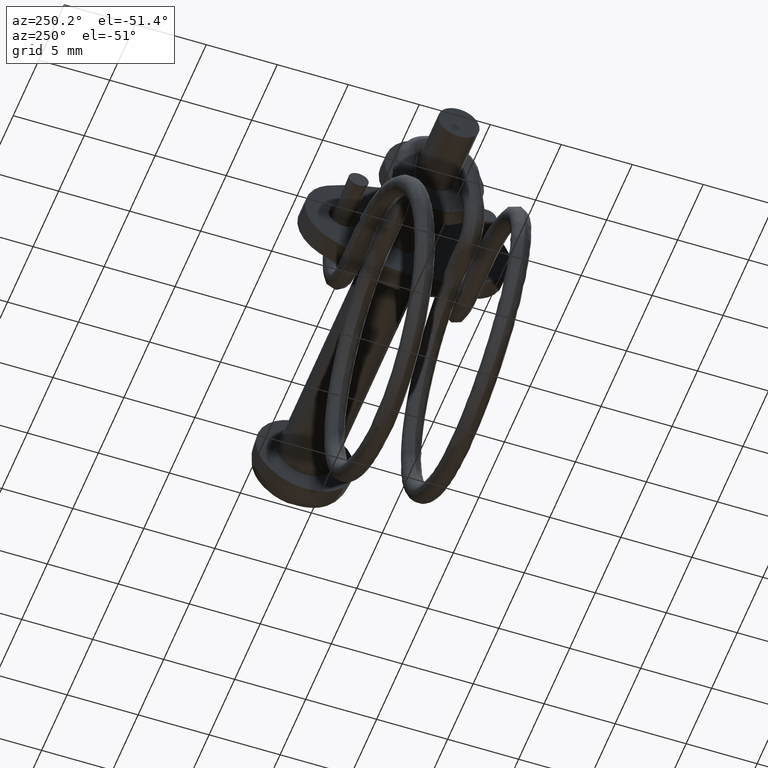
[diagram: clean part render]
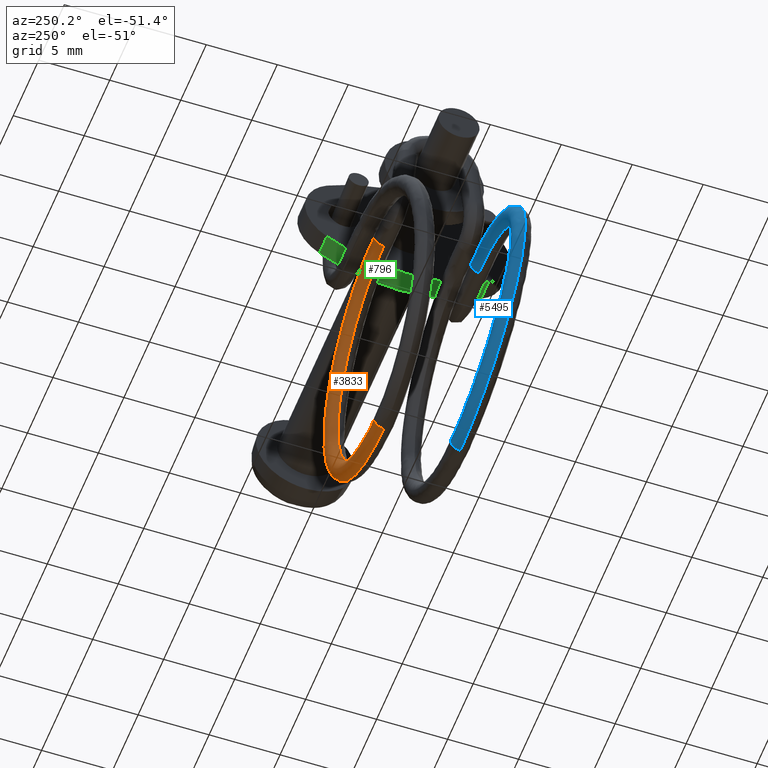
[diagram: same view with three faces highlighted in distinct colors, each labeled with its STEP entity id]
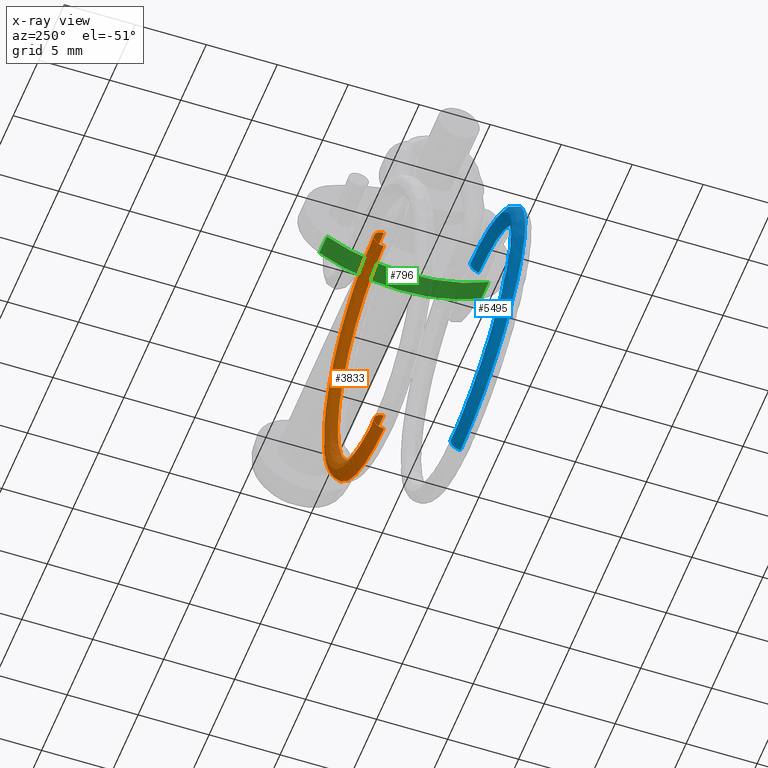
[diagram: x-ray of the same camera — body ghosted, the three highlighted faces saturated]
A machine part, auxiliary view with three faces highlighted in distinct colors.
The next image is the same camera in x-ray (body ghosted, the three faces saturated) — at least one of them is partly hidden behind the body in this view.
Their STEP definitions:

[orange] entity #3833 — the highlighted face is a freeform B-spline surface patch.
#3453=CARTESIAN_POINT('',(-22.799999895931261,2.699999999999000,-25.150000000016480));
#3454=VERTEX_POINT('',#3453);
#3472=CARTESIAN_POINT('',(-22.800000738930741,2.699999999998998,-23.750000000016460));
#3473=VERTEX_POINT('',#3472);
#3676=CARTESIAN_POINT('',(-22.800000738930741,2.699999999998998,-23.750000000016460));
#3677=CARTESIAN_POINT('',(-22.800000738930748,2.883259571458394,-23.750000000016460));
#3678=CARTESIAN_POINT('',(-22.800000693504408,3.065390661133277,-23.825441167489590));
#3679=CARTESIAN_POINT('',(-22.800000537448241,3.324558832525834,-24.084609338882160));
#3680=CARTESIAN_POINT('',(-22.800000427779370,3.399999999998962,-24.266740428557050));
#3681=CARTESIAN_POINT('',(-22.800000207082629,3.399999999998963,-24.633259571475879));
#3682=CARTESIAN_POINT('',(-22.800000097413761,3.324558832525835,-24.815390661150769));
#3683=CARTESIAN_POINT('',(-22.799999941357580,3.065390661133278,-25.074558832543339));
#3684=CARTESIAN_POINT('',(-22.799999895931261,2.883259571458395,-25.150000000016480));
#3685=CARTESIAN_POINT('',(-22.799999895931261,2.699999999999000,-25.150000000016480));
#3686=B_SPLINE_CURVE_WITH_KNOTS('',3,(#3676,#3677,#3678,#3679,#3680,#3681,#3682,#3683,#3684,#3685),.UNSPECIFIED.,.F.,.U.,(4,2,2,2,4),(0.0,0.125000000000000,0.250000000000000,0.375000000000000,0.500000000000000),.UNSPECIFIED.);
#3687=EDGE_CURVE('',#3473,#3454,#3686,.T.);
#3692=CARTESIAN_POINT('',(-24.270736205513064,2.680430283614691,-4.454518708966263));
#3693=CARTESIAN_POINT('',(-12.324382619197532,2.680430283614692,-2.747951114210628));
#3694=CARTESIAN_POINT('',(-12.400205287043322,2.680430283614695,-14.815344697241908));
#3695=CARTESIAN_POINT('',(-12.475124896879171,2.680430283614698,-26.739014025456406));
#3696=CARTESIAN_POINT('',(-24.278002691311720,2.680430283614698,-25.044440637776656));
#3697=CARTESIAN_POINT('',(-24.270736205513064,2.690158157242461,-4.454518708966262));
#3698=CARTESIAN_POINT('',(-12.324382619197532,2.690158157242461,-2.747951114210628));
#3699=CARTESIAN_POINT('',(-12.400205287043326,2.690158157242465,-14.815344697241921));
#3700=CARTESIAN_POINT('',(-12.475124896879173,2.690158157242468,-26.739014025456424));
#3701=CARTESIAN_POINT('',(-24.278002691311720,2.690158157242467,-25.044440637776660));
#3702=CARTESIAN_POINT('',(-24.270736205513074,3.399999999998955,-4.454518708966264));
#3703=CARTESIAN_POINT('',(-12.324382619197531,3.399999999998955,-2.747951114210628));
#3704=CARTESIAN_POINT('',(-12.400205287043326,3.399999999998958,-14.815344697241921));
#3705=CARTESIAN_POINT('',(-12.475124896879173,3.399999999998963,-26.739014025456406));
#3706=CARTESIAN_POINT('',(-24.278002691311727,3.399999999998963,-25.044440637776649));
#3707=CARTESIAN_POINT('',(-24.171744345524314,3.399999999998955,-5.147483795861636));
#3708=CARTESIAN_POINT('',(-13.029472250594093,3.399999999998953,-3.555781327675908));
#3709=CARTESIAN_POINT('',(-13.100191469642590,3.399999999998958,-14.810946496466030));
#3710=CARTESIAN_POINT('',(-13.170068413431798,3.399999999998962,-25.932061158359701));
#3711=CARTESIAN_POINT('',(-24.178521740932670,3.399999999998961,-24.351545594850514));
#3712=CARTESIAN_POINT('',(-24.072752485535567,3.399999999998955,-5.840448882757013));
#3713=CARTESIAN_POINT('',(-13.734561881990656,3.399999999998955,-4.363611541141185));
#3714=CARTESIAN_POINT('',(-13.800177652241841,3.399999999998958,-14.806548295690131));
#3715=CARTESIAN_POINT('',(-13.865011929984417,3.399999999998962,-25.125108291262990));
#3716=CARTESIAN_POINT('',(-24.079040790553627,3.399999999998961,-23.658650551924367));
#3717=CARTESIAN_POINT('',(-24.072752485535556,2.690158157242461,-5.840448882757010));
#3718=CARTESIAN_POINT('',(-13.734561881990658,2.690158157242460,-4.363611541141187));
#3719=CARTESIAN_POINT('',(-13.800177652241837,2.690158157242462,-14.806548295690126));
#3720=CARTESIAN_POINT('',(-13.865011929984421,2.690158157242468,-25.125108291262990));
#3721=CARTESIAN_POINT('',(-24.079040790553631,2.690158157242467,-23.658650551924360));
#3722=CARTESIAN_POINT('',(-24.072752485535545,2.680430283614690,-5.840448882757009));
#3723=CARTESIAN_POINT('',(-13.734561881990658,2.680430283614691,-4.363611541141188));
#3724=CARTESIAN_POINT('',(-13.800177652241846,2.680430283614695,-14.806548295690138));
#3725=CARTESIAN_POINT('',(-13.865011929984421,2.680430283614697,-25.125108291262990));
#3726=CARTESIAN_POINT('',(-24.079040790553631,2.680430283614697,-23.658650551924357));
#3734=(BOUNDED_SURFACE()B_SPLINE_SURFACE(2,2,((#3692,#3697,#3702,#3707,#3712,#3717,#3722),(#3693,#3698,#3703,#3708,#3713,#3718,#3723),(#3694,#3699,#3704,#3709,#3714,#3719,#3724),(#3695,#3700,#3705,#3710,#3715,#3720,#3725),(#3696,#3701,#3706,#3711,#3716,#3721,#3726)),.UNSPECIFIED.,.F.,.F.,.U.)B_SPLINE_SURFACE_WITH_KNOTS((3,2,3),(3,1,2,1,3),(0.0,19.065573801738889,37.982974987996243),(0.0,0.023195959492893,1.182993934137499,2.342791908782105,2.365987868274999),.UNSPECIFIED.)GEOMETRIC_REPRESENTATION_ITEM()RATIONAL_B_SPLINE_SURFACE(((1.002386289529803,0.996582442886105,0.700586264057494,0.990778596242406,0.700586264057494,0.996582442886105,1.002386289529804),(0.657422907247313,0.653616408920697,0.459484994263299,0.649809910594081,0.459484994263299,0.653616408920697,0.657422907247313),(1.011715728752539,1.005857864376269,0.707106781186548,1.0,0.707106781186548,1.005857864376270,1.011715728752539),(0.660176377693819,0.656353936690835,0.461409445538680,0.652531495687851,0.461409445538680,0.656353936690835,0.660176377693819),(0.997066595519499,0.991293550063476,0.696868231806318,0.985520504607453,0.696868231806318,0.991293550063476,0.997066595519499)))REPRESENTATION_ITEM('')SURFACE());
#3735=CARTESIAN_POINT('',(-22.800007992186320,2.699999999998991,-4.349999999989791));
#3736=VERTEX_POINT('',#3735);
#3737=CARTESIAN_POINT('',(-22.800007992186320,2.699999999998991,-4.349999999989791));
#3738=CARTESIAN_POINT('',(-22.374591539921880,2.699999999998993,-4.349994054321519));
#3739=CARTESIAN_POINT('',(-21.353574174094909,2.699999999998982,-4.412697938934061));
#3740=CARTESIAN_POINT('',(-19.870607184026252,2.699999999999006,-4.726616045852189));
#3741=CARTESIAN_POINT('',(-18.436458479282649,2.699999999998972,-5.274828720076889));
#3742=CARTESIAN_POINT('',(-17.201905617733040,2.699999999998998,-5.949383361559765));
#3743=CARTESIAN_POINT('',(-16.135399402971078,2.699999999999036,-6.730272259666065));
#3744=CARTESIAN_POINT('',(-15.067471696866260,2.699999999999012,-7.740755552318969));
#3745=CARTESIAN_POINT('',(-14.220223067527790,2.699999999998934,-8.812751013132704));
#3746=CARTESIAN_POINT('',(-13.605707061313190,2.699999999999085,-9.859867196797117));
#3747=CARTESIAN_POINT('',(-13.177968682985520,2.699999999998909,-10.764239338404050));
#3748=CARTESIAN_POINT('',(-12.761824738960700,2.699999999999024,-11.905019996763571));
#3749=CARTESIAN_POINT('',(-12.492757341632700,2.699999999999069,-13.157084332083620));
#3750=CARTESIAN_POINT('',(-12.380020033742960,2.699999999998774,-14.515206346244961));
#3751=CARTESIAN_POINT('',(-12.413372921994901,2.699999999999067,-15.601985604578511));
#3752=CARTESIAN_POINT('',(-12.596036199846980,2.699999999998965,-16.887810945375850));
#3753=CARTESIAN_POINT('',(-12.931557629973041,2.699999999998998,-18.145179049911349));
#3754=CARTESIAN_POINT('',(-13.553139059348259,2.699999999999069,-19.595239471530370));
#3755=CARTESIAN_POINT('',(-14.318313941922600,2.699999999998818,-20.828570037760031));
#3756=CARTESIAN_POINT('',(-15.083778183210640,2.699999999999061,-21.743906030293939));
#3757=CARTESIAN_POINT('',(-15.836182128482680,2.699999999998964,-22.496313965250788));
#3758=CARTESIAN_POINT('',(-16.805842813325722,2.699999999999027,-23.297161643803499));
#3759=CARTESIAN_POINT('',(-18.087713337711609,2.699999999998974,-24.065463389560868));
#3760=CARTESIAN_POINT('',(-19.467976936153701,2.699999999999038,-24.632200489439711));
#3761=CARTESIAN_POINT('',(-20.991984190875829,2.699999999998914,-25.038899157906361));
#3762=CARTESIAN_POINT('',(-22.119317331814401,2.699999999999061,-25.150093817175581));
#3763=CARTESIAN_POINT('',(-22.799999895931261,2.699999999999000,-25.150000000016480));
#3764=B_SPLINE_CURVE_WITH_KNOTS('',3,(#3737,#3738,#3739,#3740,#3741,#3742,#3743,#3744,#3745,#3746,#3747,#3748,#3749,#3750,#3751,#3752,#3753,#3754,#3755,#3756,#3757,#3758,#3759,#3760,#3761,#3762,#3763),.UNSPECIFIED.,.F.,.U.,(4,1,1,1,1,1,1,1,1,1,1,1,1,1,1,1,1,1,1,1,1,1,1,1,4),(0.000000024018426,1.276253329061102,3.063043498553579,4.530766388287617,5.870858332757209,7.274764767594157,8.487229634717824,10.274019877797270,11.358855517810911,12.124616574461619,13.273272747310211,14.996232556397370,15.953440363166591,17.357309613248962,18.250703975493600,19.846046964578239,21.249956187118752,22.972928550616370,24.185397903907312,24.823534658981689,26.163623646440531,27.950415452316960,29.290497013964991,30.630596534127079,32.672622739382653),.UNSPECIFIED.);
#3765=EDGE_CURVE('',#3736,#3454,#3764,.T.);
#3766=ORIENTED_EDGE('',*,*,#3765,.T.);
#3767=ORIENTED_EDGE('',*,*,#3687,.F.);
#3768=CARTESIAN_POINT('',(-22.800005826610910,2.699999999998991,-5.749999999991088));
#3769=VERTEX_POINT('',#3768);
#3770=CARTESIAN_POINT('',(-22.800005826610910,2.699999999998991,-5.749999999991088));
#3771=CARTESIAN_POINT('',(-22.174133866737211,2.699999999998988,-5.749893574187727));
#3772=CARTESIAN_POINT('',(-21.198574816754139,2.699999999998992,-5.852205116584763));
#3773=CARTESIAN_POINT('',(-19.846823057187208,2.699999999998988,-6.221829268831385));
#3774=CARTESIAN_POINT('',(-18.791134827659999,2.699999999999007,-6.662906955182711));
#3775=CARTESIAN_POINT('',(-17.851044405305341,2.699999999998969,-7.210822535335842));
#3776=CARTESIAN_POINT('',(-16.933232705473419,2.699999999998998,-7.891488907042418));
#3777=CARTESIAN_POINT('',(-16.201968131884779,2.699999999999007,-8.596322659057226));
#3778=CARTESIAN_POINT('',(-15.445142289075610,2.699999999998879,-9.524303925125272));
#3779=CARTESIAN_POINT('',(-14.911651521541650,2.699999999999283,-10.366773341152820));
#3780=CARTESIAN_POINT('',(-14.442021729686489,2.699999999998764,-11.367722502349039));
#3781=CARTESIAN_POINT('',(-14.115210479250811,2.699999999999122,-12.308268052585380));
#3782=CARTESIAN_POINT('',(-13.887256211212650,2.699999999998959,-13.353364352961330));
#3783=CARTESIAN_POINT('',(-13.792708139339920,2.699999999998999,-14.344563923955100));
#3784=CARTESIAN_POINT('',(-13.801363774942031,2.699999999998995,-15.284310095945390));
#3785=CARTESIAN_POINT('',(-13.908020422445439,2.699999999998994,-16.273942123537591));
#3786=CARTESIAN_POINT('',(-14.132271946825620,2.699999999999004,-17.244660129830560));
#3787=CARTESIAN_POINT('',(-14.464632854247990,2.699999999998990,-18.182585856640209));
#3788=CARTESIAN_POINT('',(-14.848300182412220,2.699999999998954,-19.000254031549780));
#3789=CARTESIAN_POINT('',(-15.467365241167631,2.699999999999192,-20.026078550903740));
#3790=CARTESIAN_POINT('',(-16.268022744780531,2.699999999998949,-20.995605627554351));
#3791=CARTESIAN_POINT('',(-17.235194367164109,2.699999999999005,-21.850724191462731));
#3792=CARTESIAN_POINT('',(-18.236564823490170,2.699999999998998,-22.542314068467348));
#3793=CARTESIAN_POINT('',(-19.376727841416528,2.699999999998997,-23.111856341605819));
#3794=CARTESIAN_POINT('',(-20.483954913501101,2.699999999998998,-23.466326418915379));
#3795=CARTESIAN_POINT('',(-21.603510967295890,2.699999999999000,-23.692598268509439));
#3796=CARTESIAN_POINT('',(-22.321402437715300,2.699999999998995,-23.750029375981690));
#3797=CARTESIAN_POINT('',(-22.800000738930741,2.699999999998998,-23.750000000016460));
#3798=B_SPLINE_CURVE_WITH_KNOTS('',3,(#3770,#3771,#3772,#3773,#3774,#3775,#3776,#3777,#3778,#3779,#3780,#3781,#3782,#3783,#3784,#3785,#3786,#3787,#3788,#3789,#3790,#3791,#3792,#3793,#3794,#3795,#3796,#3797),.UNSPECIFIED.,.F.,.U.,(4,1,1,1,1,1,1,1,1,1,1,1,1,1,1,1,1,1,1,1,1,1,1,1,1,4),(0.000000035287673,1.877587154311666,2.926827180425569,4.196979532013511,5.301446907433810,6.185022556073758,7.620836713392748,8.338743979376048,9.774557123615519,10.602902568937120,11.652159049494969,12.756615630068380,13.805873457826300,14.634191125977960,15.572993944592110,16.787903498866640,17.616254632542908,18.555050693465780,19.493852355407331,21.205788314634489,22.310257097243579,23.359507076520320,24.850535065932920,26.120673097261822,26.838593968332010,28.274384802228131),.UNSPECIFIED.);
#3799=EDGE_CURVE('',#3769,#3473,#3798,.T.);
#3800=ORIENTED_EDGE('',*,*,#3799,.F.);
#3801=CARTESIAN_POINT('',(-22.800006843296011,3.398694358879293,-5.092733977825215));
#3802=VERTEX_POINT('',#3801);
#3803=CARTESIAN_POINT('',(-22.800005826610910,2.699999999998991,-5.749999999991088));
#3804=CARTESIAN_POINT('',(-22.800005826610917,3.358494246678680,-5.749999999990932));
#3805=CARTESIAN_POINT('',(-22.800006843296011,3.398694358879293,-5.092733977825215));
#3813=(BOUNDED_CURVE()B_SPLINE_CURVE(2,(#3803,#3804,#3805),.UNSPECIFIED.,.F.,.U.)B_SPLINE_CURVE_WITH_KNOTS((3,3),(0.0,0.478665924404589),.UNSPECIFIED.)CURVE()GEOMETRIC_REPRESENTATION_ITEM()RATIONAL_B_SPLINE_CURVE((1.0,0.719603993329646,0.976072041588173))REPRESENTATION_ITEM(''));
#3814=EDGE_CURVE('',#3769,#3802,#3813,.T.);
#3815=ORIENTED_EDGE('',*,*,#3814,.T.);
#3816=CARTESIAN_POINT('',(-22.800006843296011,3.398694358879293,-5.092733977825215));
#3817=CARTESIAN_POINT('',(-22.800006876316463,3.399999999993886,-5.071386934379712));
#3818=CARTESIAN_POINT('',(-22.800006909398618,3.399999999993965,-5.049999999990135));
#3819=CARTESIAN_POINT('',(-22.800007992186323,3.399999999996536,-4.349999999989644));
#3820=CARTESIAN_POINT('',(-22.800007992186320,2.699999999998991,-4.349999999989791));
#3828=(BOUNDED_CURVE()B_SPLINE_CURVE(2,(#3816,#3817,#3818,#3819,#3820),.UNSPECIFIED.,.F.,.U.)B_SPLINE_CURVE_WITH_KNOTS((3,2,3),(0.478665924404589,0.500000000000000,1.0),.UNSPECIFIED.)CURVE()GEOMETRIC_REPRESENTATION_ITEM()RATIONAL_B_SPLINE_CURVE((0.976072041588174,0.987502787856901,1.0,0.707106781186548,1.0))REPRESENTATION_ITEM(''));
#3829=EDGE_CURVE('',#3802,#3736,#3828,.T.);
#3830=ORIENTED_EDGE('',*,*,#3829,.T.);
#3831=EDGE_LOOP('',(#3766,#3767,#3800,#3815,#3830));
#3832=FACE_OUTER_BOUND('',#3831,.T.);
#3833=ADVANCED_FACE('',(#3832),#3734,.T.);

[blue] entity #5495 — the highlighted face is a freeform B-spline surface patch.
#5125=CARTESIAN_POINT('',(-22.799999853993750,-2.699999999990555,-25.150000000016728));
#5126=VERTEX_POINT('',#5125);
#5159=CARTESIAN_POINT('',(-22.800005509723938,-2.699999999990555,-23.750000000010061));
#5160=VERTEX_POINT('',#5159);
#5250=CARTESIAN_POINT('',(-22.799999853993750,-2.699999999990555,-25.150000000016728));
#5251=CARTESIAN_POINT('',(-22.799999853993750,-2.516740428531161,-25.150000000016728));
#5252=CARTESIAN_POINT('',(-22.800000158761531,-2.334609338856275,-25.074558832543278));
#5253=CARTESIAN_POINT('',(-22.800001205750998,-2.075441167463715,-24.815390661149468));
#5254=CARTESIAN_POINT('',(-22.800001941525501,-1.999999999990590,-24.633259571473690));
#5255=CARTESIAN_POINT('',(-22.800003422192191,-1.999999999990590,-24.266740428553110));
#5256=CARTESIAN_POINT('',(-22.800004157966701,-2.075441167463715,-24.084609338877382));
#5257=CARTESIAN_POINT('',(-22.800005204956161,-2.334609338856275,-23.825441167483518));
#5258=CARTESIAN_POINT('',(-22.800005509723938,-2.516740428531160,-23.750000000010061));
#5259=CARTESIAN_POINT('',(-22.800005509723938,-2.699999999990555,-23.750000000010061));
#5260=B_SPLINE_CURVE_WITH_KNOTS('',3,(#5250,#5251,#5252,#5253,#5254,#5255,#5256,#5257,#5258,#5259),.UNSPECIFIED.,.F.,.U.,(4,2,2,2,4),(0.500000000000000,0.625000000000000,0.750000000000000,0.875000000000000,1.0),.UNSPECIFIED.);
#5261=EDGE_CURVE('',#5126,#5160,#5260,.T.);
#5269=CARTESIAN_POINT('',(-22.472283299485369,-4.222270891016216,-4.360410669851948));
#5270=CARTESIAN_POINT('',(-22.471662607533499,-4.034501704268647,-4.327171804591980));
#5271=CARTESIAN_POINT('',(-22.473628682136908,-3.833944868834298,-4.375063033223608));
#5272=CARTESIAN_POINT('',(-22.481354012477869,-3.534408578130713,-4.598496517776291));
#5273=CARTESIAN_POINT('',(-22.492537020047241,-3.332593642664381,-4.938660487879030));
#5274=CARTESIAN_POINT('',(-22.504406555097830,-3.429416612829618,-5.322152478905613));
#5275=CARTESIAN_POINT('',(-22.513334708060100,-3.653105236054527,-5.621498311574861));
#5276=CARTESIAN_POINT('',(-22.516172590126789,-3.831782654196446,-5.724410922053164));
#5277=CARTESIAN_POINT('',(-22.516419126202809,-4.021255941724583,-5.745904441097816));
#5278=CARTESIAN_POINT('',(-22.581522199645558,-4.222270891016215,-4.360410669851961));
#5279=CARTESIAN_POINT('',(-22.581108405010980,-4.034501704268646,-4.327171804591994));
#5280=CARTESIAN_POINT('',(-22.582419121413260,-3.833944868834297,-4.375063033223621));
#5281=CARTESIAN_POINT('',(-22.587569341640560,-3.534408578130712,-4.598496517776304));
#5282=CARTESIAN_POINT('',(-22.595024680020149,-3.332593642664379,-4.938660487879044));
#5283=CARTESIAN_POINT('',(-22.602937703387209,-3.429416612829618,-5.322152478905625));
#5284=CARTESIAN_POINT('',(-22.608889805362050,-3.653105236054526,-5.621498311574873));
#5285=CARTESIAN_POINT('',(-22.610781726739841,-3.831782654196446,-5.724410922053176));
#5286=CARTESIAN_POINT('',(-22.610946084123860,-4.021255941724582,-5.745904441097828));
#5287=CARTESIAN_POINT('',(-22.690761099805759,-4.222270891016215,-4.360410669851975));
#5288=CARTESIAN_POINT('',(-22.690554202488460,-4.034501704268645,-4.327171804592007));
#5289=CARTESIAN_POINT('',(-22.691209560689600,-3.833944868834296,-4.375063033223635));
#5290=CARTESIAN_POINT('',(-22.693784670803250,-3.534408578130711,-4.598496517776317));
#5291=CARTESIAN_POINT('',(-22.697512339993050,-3.332593642664378,-4.938660487879057));
#5292=CARTESIAN_POINT('',(-22.701468851676569,-3.429416612829617,-5.322152478905639));
#5293=CARTESIAN_POINT('',(-22.704444902664001,-3.653105236054525,-5.621498311574886));
#5294=CARTESIAN_POINT('',(-22.705390863352889,-3.831782654196445,-5.724410922053190));
#5295=CARTESIAN_POINT('',(-22.705473042044900,-4.021255941724581,-5.745904441097840));
#5296=CARTESIAN_POINT('',(-25.530972491808701,-4.222270891016189,-4.360410669852324));
#5297=CARTESIAN_POINT('',(-25.536144924717899,-4.034501704268619,-4.327171804592356));
#5298=CARTESIAN_POINT('',(-25.519760969762480,-3.833944868834270,-4.375063033223983));
#5299=CARTESIAN_POINT('',(-25.455383217207849,-3.534408578130686,-4.598496517776651));
#5300=CARTESIAN_POINT('',(-25.362191487878029,-3.332593642664349,-4.938660487879401));
#5301=CARTESIAN_POINT('',(-25.263278696230291,-3.429416612829596,-5.322152478905969));
#5302=CARTESIAN_POINT('',(-25.188877421876089,-3.653105236054498,-5.621498311575208));
#5303=CARTESIAN_POINT('',(-25.165228404758981,-3.831782654196427,-5.724410922053512));
#5304=CARTESIAN_POINT('',(-25.163173937467960,-4.021255941724558,-5.745904441098161));
#5305=CARTESIAN_POINT('',(-28.229553618521280,-4.141308881337252,-5.482312803675583));
#5306=CARTESIAN_POINT('',(-28.239830370415760,-3.953386244601218,-5.451200316835958));
#5307=CARTESIAN_POINT('',(-28.207278214943319,-3.753315470127098,-5.492356129297108));
#5308=CARTESIAN_POINT('',(-28.079370477439959,-3.455689067011635,-5.689324028690605));
#5309=CARTESIAN_POINT('',(-27.894214227334640,-3.256638840165998,-5.991177036513596));
#5310=CARTESIAN_POINT('',(-27.697691191208950,-3.356396245062199,-6.334006146234902));
#5311=CARTESIAN_POINT('',(-27.549868406275898,-3.582292122577836,-6.602765740876037));
#5312=CARTESIAN_POINT('',(-27.502881797495860,-3.761671133467121,-6.695956280424483));
#5313=CARTESIAN_POINT('',(-27.498799917463611,-3.951205370646866,-6.716605211440162));
#5314=CARTESIAN_POINT('',(-31.115472418408618,-3.932970021589963,-8.369294145899533));
#5315=CARTESIAN_POINT('',(-31.131193555541319,-3.744654346417100,-8.343628048814209));
#5316=CARTESIAN_POINT('',(-31.081396021725830,-3.545828541989009,-8.367532133505781));
#5317=CARTESIAN_POINT('',(-30.885725726108969,-3.253094020826302,-8.496712525854319));
#5318=CARTESIAN_POINT('',(-30.602477981292271,-3.061125167907655,-8.700437923493444));
#5319=CARTESIAN_POINT('',(-30.301841590383461,-3.168398673961728,-8.939115345792219));
#5320=CARTESIAN_POINT('',(-30.075705716269798,-3.399948092283929,-9.129533017827873));
#5321=CARTESIAN_POINT('',(-30.003826689951140,-3.581124124588333,-9.197821974913117));
#5322=CARTESIAN_POINT('',(-29.997582324374509,-3.770814474882287,-9.216307624202607));
#5323=CARTESIAN_POINT('',(-31.885123592238660,-3.849836556945518,-9.521286441671498));
#5324=CARTESIAN_POINT('',(-31.902294011768010,-3.661364255947978,-9.497790731024168));
#5325=CARTESIAN_POINT('',(-31.847905799261252,-3.463034572110175,-9.514820001816725));
#5326=CARTESIAN_POINT('',(-31.634197271877969,-3.172249466011594,-9.616987071132424));
#5327=CARTESIAN_POINT('',(-31.324837804514100,-2.983102540760392,-9.781608613960989));
#5328=CARTESIAN_POINT('',(-30.996486686238640,-3.093371213286943,-9.978781586558679));
#5329=CARTESIAN_POINT('',(-30.749504054080958,-3.327173567744820,-10.137980000712970));
#5330=CARTESIAN_POINT('',(-30.670998725432781,-3.509065713121827,-10.196345676642670));
#5331=CARTESIAN_POINT('',(-30.664178711350541,-3.698818274495878,-10.213969258114290));
#5332=CARTESIAN_POINT('',(-32.926695095445773,-3.668313214560966,-12.036681328991950));
#5333=CARTESIAN_POINT('',(-32.945825437022258,-3.479499341620908,-12.017918829536100));
#5334=CARTESIAN_POINT('',(-32.885229067715137,-3.282251604983876,-12.019955403406501));
#5335=CARTESIAN_POINT('',(-32.647126724349413,-2.995717812401064,-12.063211413997500));
#5336=CARTESIAN_POINT('',(-32.302455339351347,-2.812724989193989,-12.142554685659849));
#5337=CARTESIAN_POINT('',(-31.936624496441610,-2.929525565544140,-12.249214133834130));
#5338=CARTESIAN_POINT('',(-31.661449966883630,-3.168241156807264,-12.340329123690680));
#5339=CARTESIAN_POINT('',(-31.573983626879041,-3.351695012281166,-12.377053959717440));
#5340=CARTESIAN_POINT('',(-31.566385140497729,-3.541583244506517,-12.392797530808821));
#5341=CARTESIAN_POINT('',(-33.196601484527207,-3.570276363980056,-13.395191972749490));
#5342=CARTESIAN_POINT('',(-33.216238928762273,-3.381278201490139,-13.378983199915361));
#5343=CARTESIAN_POINT('',(-33.154036284947772,-3.184614211755558,-13.372930709564040));
#5344=CARTESIAN_POINT('',(-32.909622379871237,-2.900374145794474,-13.384402222687520));
#5345=CARTESIAN_POINT('',(-32.555814525710282,-2.720701667612238,-13.417734998992019));
#5346=CARTESIAN_POINT('',(-32.180286323642711,-2.841026425755961,-13.475559356616250));
#5347=CARTESIAN_POINT('',(-31.897817531453111,-3.082392873516660,-13.529941049288761));
#5348=CARTESIAN_POINT('',(-31.808032653988288,-3.266689324110036,-13.554989924369920));
#5349=CARTESIAN_POINT('',(-31.800232748692039,-3.456650755323721,-13.569719166632810));
#5350=CARTESIAN_POINT('',(-33.196601484527207,-3.373985775622023,-16.115218697123741));
#5351=CARTESIAN_POINT('',(-33.216238928762273,-3.184618645741585,-16.104122758137208));
#5352=CARTESIAN_POINT('',(-33.154036284947772,-2.989123379743309,-16.081875096012801));
#5353=CARTESIAN_POINT('',(-32.909622379871237,-2.709475599813520,-16.029710645556818));
#5354=CARTESIAN_POINT('',(-32.555814525710282,-2.536450807515357,-15.970925488908231));
#5355=CARTESIAN_POINT('',(-32.180286323642711,-2.663831354550939,-15.930976771864030));
#5356=CARTESIAN_POINT('',(-31.897817531453111,-2.910505100553488,-15.911814474617911));
#5357=CARTESIAN_POINT('',(-31.808032653988288,-3.096488516699884,-15.913486827033530));
#5358=CARTESIAN_POINT('',(-31.800232748692039,-3.286596500115826,-15.926185274486320));
#5359=CARTESIAN_POINT('',(-32.926695095437537,-3.275948925040622,-17.473729340886550));
#5360=CARTESIAN_POINT('',(-32.945825437010853,-3.086397505610012,-17.465187128520348));
#5361=CARTESIAN_POINT('',(-32.885229067713233,-2.891485986514197,-17.434850402176611));
#5362=CARTESIAN_POINT('',(-32.647126724347061,-2.614131933205631,-17.350901454252419));
#5363=CARTESIAN_POINT('',(-32.302455339342899,-2.444427485933079,-17.246105802245609));
#5364=CARTESIAN_POINT('',(-31.936624496444569,-2.575332214761902,-17.157321994650861));
#5365=CARTESIAN_POINT('',(-31.661449966881690,-2.824656817262080,-17.101426400220070));
#5366=CARTESIAN_POINT('',(-31.573983626877141,-3.011482828528548,-17.091422791692469));
#5367=CARTESIAN_POINT('',(-31.566385140497061,-3.201664010932161,-17.103106910315351));
#5368=CARTESIAN_POINT('',(-31.885123592243140,-3.094425582657106,-19.989124228195720));
#5369=CARTESIAN_POINT('',(-31.902294011775680,-2.904532591284597,-19.985315227023790));
#5370=CARTESIAN_POINT('',(-31.847905799259419,-2.710703019389531,-19.939985803753171));
#5371=CARTESIAN_POINT('',(-31.634197271876548,-2.437600279597749,-19.797125797105611));
#5372=CARTESIAN_POINT('',(-31.324837804518889,-2.274049934367773,-19.607051873933401));
#5373=CARTESIAN_POINT('',(-30.996486686231901,-2.411486567020866,-19.427754541916180));
#5374=CARTESIAN_POINT('',(-30.749504054079150,-2.665724406326184,-19.303775523188929));
#5375=CARTESIAN_POINT('',(-30.670998725430881,-2.854112127688353,-19.272131074753649));
#5376=CARTESIAN_POINT('',(-30.664178711347400,-3.044428980944590,-19.281935182999099));
#5377=CARTESIAN_POINT('',(-31.115472418399051,-3.011292118012615,-21.141116523975700));
#5378=CARTESIAN_POINT('',(-31.131193555526291,-2.821242500815321,-21.139477909238931));
#5379=CARTESIAN_POINT('',(-31.081396021717929,-2.627909049509940,-21.087273672074140));
#5380=CARTESIAN_POINT('',(-30.885725726101949,-2.356755724783090,-20.917400342388810));
#5381=CARTESIAN_POINT('',(-30.602477981288789,-2.196027307219626,-20.688222564408751));
#5382=CARTESIAN_POINT('',(-30.301841590374689,-2.336459106345909,-20.467420782684201));
#5383=CARTESIAN_POINT('',(-30.075705716264189,-2.592949881787431,-20.312222506079660));
#5384=CARTESIAN_POINT('',(-30.003826689945502,-2.782053716222201,-20.270654776493519));
#5385=CARTESIAN_POINT('',(-29.997582324368832,-2.972432780557766,-20.279596816920741));
#5386=CARTESIAN_POINT('',(-28.229553618529970,-2.802953258264139,-24.028097866189320));
#5387=CARTESIAN_POINT('',(-28.239830370435381,-2.612510602629414,-24.031905641211111));
#5388=CARTESIAN_POINT('',(-28.207278214948762,-2.420422121371917,-23.962449676269301));
#5389=CARTESIAN_POINT('',(-28.079370477443561,-2.154160678593874,-23.724788839551842));
#5390=CARTESIAN_POINT('',(-27.894214227331151,-2.000513634962521,-23.397483451378630));
#5391=CARTESIAN_POINT('',(-27.697691191216052,-2.148461535243535,-23.072529982248799));
#5392=CARTESIAN_POINT('',(-27.549868406276619,-2.410605851490197,-22.838989783024619));
#5393=CARTESIAN_POINT('',(-27.502881797496759,-2.601506707341894,-22.772520470968409));
#5394=CARTESIAN_POINT('',(-27.498799917464510,-2.792041884791994,-22.779299229666279));
#5395=CARTESIAN_POINT('',(-25.530972491794330,-2.721991248606182,-25.150000000017350));
#5396=CARTESIAN_POINT('',(-25.536144924695300,-2.531395142983394,-25.155934153456649));
#5397=CARTESIAN_POINT('',(-25.519760969750521,-2.339792722684887,-25.079742772349348));
#5398=CARTESIAN_POINT('',(-25.455383217197308,-2.075441167497603,-24.815616350464168));
#5399=CARTESIAN_POINT('',(-25.362191487872732,-1.924558832483527,-24.450000000017312));
#5400=CARTESIAN_POINT('',(-25.263278696217139,-2.075441167497603,-24.084383649570810));
#5401=CARTESIAN_POINT('',(-25.188877421867620,-2.339792738035941,-23.820257212327899));
#5402=CARTESIAN_POINT('',(-25.165228404750369,-2.531395186633788,-23.744065829346440));
#5403=CARTESIAN_POINT('',(-25.163173937459391,-2.721991313735283,-23.750000000017451));
#5404=CARTESIAN_POINT('',(-22.690761051152929,-2.721991248606209,-25.150000000016671));
#5405=CARTESIAN_POINT('',(-22.690554153743829,-2.531395142983421,-25.155934153455970));
#5406=CARTESIAN_POINT('',(-22.691209512236391,-2.339792722684913,-25.079742772348681));
#5407=CARTESIAN_POINT('',(-22.693784623496789,-2.075441167497624,-24.815616350463490));
#5408=CARTESIAN_POINT('',(-22.697512294346449,-1.924558832483559,-24.450000000016640));
#5409=CARTESIAN_POINT('',(-22.701468807792281,-2.075441167497624,-24.084383649570139));
#5410=CARTESIAN_POINT('',(-22.704444860104879,-2.339792738035967,-23.820257212327220));
#5411=CARTESIAN_POINT('',(-22.705390821215051,-2.531395186633815,-23.744065829345761));
#5412=CARTESIAN_POINT('',(-22.705472999943652,-2.721991313735309,-23.750000000016779));
#5413=CARTESIAN_POINT('',(-22.581522102344760,-2.721991248606210,-25.150000000016639));
#5414=CARTESIAN_POINT('',(-22.581108307526570,-2.531395142983422,-25.155934153455931));
#5415=CARTESIAN_POINT('',(-22.582419024511701,-2.339792722684914,-25.079742772348649));
#5416=CARTESIAN_POINT('',(-22.587569247032480,-2.075441167497625,-24.815616350463461));
#5417=CARTESIAN_POINT('',(-22.595024588731810,-1.924558832483559,-24.450000000016608));
#5418=CARTESIAN_POINT('',(-22.602937615623471,-2.075441167497625,-24.084383649570110));
#5419=CARTESIAN_POINT('',(-22.608889720248641,-2.339792738035968,-23.820257212327199));
#5420=CARTESIAN_POINT('',(-22.610781642468989,-2.531395186633817,-23.744065829345729));
#5421=CARTESIAN_POINT('',(-22.610945999926201,-2.721991313735310,-23.750000000016751));
#5422=CARTESIAN_POINT('',(-22.472283153536591,-2.721991248606211,-25.150000000016622));
#5423=CARTESIAN_POINT('',(-22.471662461309290,-2.531395142983423,-25.155934153455910));
#5424=CARTESIAN_POINT('',(-22.473628536786990,-2.339792722684915,-25.079742772348620));
#5425=CARTESIAN_POINT('',(-22.481353870568171,-2.075441167497625,-24.815616350463440));
#5426=CARTESIAN_POINT('',(-22.492536883117150,-1.924558832483561,-24.450000000016580));
#5427=CARTESIAN_POINT('',(-22.504406423454650,-2.075441167497625,-24.084383649570089));
#5428=CARTESIAN_POINT('',(-22.513334580392410,-2.339792738035969,-23.820257212327171));
#5429=CARTESIAN_POINT('',(-22.516172463722938,-2.531395186633818,-23.744065829345711));
#5430=CARTESIAN_POINT('',(-22.516418999908751,-2.721991313735311,-23.750000000016719));
#5431=B_SPLINE_SURFACE_WITH_KNOTS('',3,3,((#5269,#5278,#5287,#5296,#5305,#5314,#5323,#5332,#5341,#5350,#5359,#5368,#5377,#5386,#5395,#5404,#5413,#5422),(#5270,#5279,#5288,#5297,#5306,#5315,#5324,#5333,#5342,#5351,#5360,#5369,#5378,#5387,#5396,#5405,#5414,#5423),(#5271,#5280,#5289,#5298,#5307,#5316,#5325,#5334,#5343,#5352,#5361,#5370,#5379,#5388,#5397,#5406,#5415,#5424),(#5272,#5281,#5290,#5299,#5308,#5317,#5326,#5335,#5344,#5353,#5362,#5371,#5380,#5389,#5398,#5407,#5416,#5425),(#5273,#5282,#5291,#5300,#5309,#5318,#5327,#5336,#5345,#5354,#5363,#5372,#5381,#5390,#5399,#5408,#5417,#5426),(#5274,#5283,#5292,#5301,#5310,#5319,#5328,#5337,#5346,#5355,#5364,#5373,#5382,#5391,#5400,#5409,#5418,#5427),(#5275,#5284,#5293,#5302,#5311,#5320,#5329,#5338,#5347,#5356,#5365,#5374,#5383,#5392,#5401,#5410,#5419,#5428),(#5276,#5285,#5294,#5303,#5312,#5321,#5330,#5339,#5348,#5357,#5366,#5375,#5384,#5393,#5402,#5411,#5420,#5429),(#5277,#5286,#5295,#5304,#5313,#5322,#5331,#5340,#5349,#5358,#5367,#5376,#5385,#5394,#5403,#5412,#5421,#5430)),.UNSPECIFIED.,.F.,.F.,.U.,(4,2,1,2,4),(4,2,2,2,2,2,2,2,4),(0.0,0.572285295191880,1.122559521212253,1.672833747232626,2.245119107612307),(0.0,0.327716700480590,8.520634176009050,12.617092913773281,16.713551651537539,20.810010389301720,24.906469127066000,33.099386602594457,33.427103449020123),.UNSPECIFIED.);
#5432=CARTESIAN_POINT('',(-22.799999999965952,-4.200507506888036,-4.357253119035302));
#5433=VERTEX_POINT('',#5432);
#5434=CARTESIAN_POINT('',(-22.799999999965952,-4.200507506888036,-4.357253119035302));
#5435=CARTESIAN_POINT('',(-25.531389417036799,-4.200507506888011,-4.357253119035637));
#5436=CARTESIAN_POINT('',(-28.230381978637730,-4.119533128335226,-5.479326650115008));
#5437=CARTESIAN_POINT('',(-31.116739624537740,-3.911162587628572,-8.366746999925978));
#5438=CARTESIAN_POINT('',(-31.886507618132150,-3.828016498121232,-9.518914240231119));
#5439=CARTESIAN_POINT('',(-32.928237101338482,-3.646465623246671,-12.034690649205031));
#5440=CARTESIAN_POINT('',(-33.198184365554589,-3.548413917961521,-13.393407136725591));
#5441=CARTESIAN_POINT('',(-33.198184365554667,-3.352093588896728,-16.113845982330979));
#5442=CARTESIAN_POINT('',(-32.928237101330133,-3.254041883611053,-17.472562469856680));
#5443=CARTESIAN_POINT('',(-31.886507618137198,-3.072491008737595,-19.988338878819562));
#5444=CARTESIAN_POINT('',(-31.116739624528009,-2.989344919230192,-21.140506119132461));
#5445=CARTESIAN_POINT('',(-28.230381978648019,-2.780974378522302,-24.027926468933490));
#5446=CARTESIAN_POINT('',(-25.531389417022229,-2.699999999990530,-25.150000000017371));
#5447=CARTESIAN_POINT('',(-22.799999999961699,-2.699999999990555,-25.150000000016711));
#5448=B_SPLINE_CURVE_WITH_KNOTS('',3,(#5434,#5435,#5436,#5437,#5438,#5439,#5440,#5441,#5442,#5443,#5444,#5445,#5446,#5447),.UNSPECIFIED.,.F.,.U.,(4,2,2,2,2,2,4),(0.082469768607115,0.126804781995831,0.148972288690190,0.171139795384548,0.193307302078906,0.215474808773265,0.259809822161981),.UNSPECIFIED.);
#5449=EDGE_CURVE('',#5433,#5126,#5448,.T.);
#5450=ORIENTED_EDGE('',*,*,#5449,.F.);
#5451=CARTESIAN_POINT('',(-22.799999999534069,-3.414707688141773,-4.907394590125365));
#5452=VERTEX_POINT('',#5451);
#5453=CARTESIAN_POINT('',(-22.799999999965952,-4.200507506888036,-4.357253119035302));
#5454=CARTESIAN_POINT('',(-22.799999999905850,-4.019143087459340,-4.330939534110805));
#5455=CARTESIAN_POINT('',(-22.799999999822852,-3.828062037691261,-4.379447157683068));
#5456=CARTESIAN_POINT('',(-22.799999999664319,-3.545782875242651,-4.590185864287610));
#5457=CARTESIAN_POINT('',(-22.799999999589581,-3.449508269804148,-4.742126869968756));
#5458=CARTESIAN_POINT('',(-22.799999999534069,-3.414707688141773,-4.907394590125365));
#5459=B_SPLINE_CURVE_WITH_KNOTS('',3,(#5453,#5454,#5455,#5456,#5457,#5458),.UNSPECIFIED.,.F.,.U.,(4,2,4),(0.500000000000001,0.625000000000001,0.740274489740674),.UNSPECIFIED.);
#5460=EDGE_CURVE('',#5433,#5452,#5459,.T.);
#5461=ORIENTED_EDGE('',*,*,#5460,.T.);
#5462=CARTESIAN_POINT('',(-22.799999999965952,-3.999492493146504,-5.742746880930636));
#5463=VERTEX_POINT('',#5462);
#5464=CARTESIAN_POINT('',(-22.799999999534069,-3.414707688141773,-4.907394590125365));
#5465=CARTESIAN_POINT('',(-22.799999999538191,-3.411772166768491,-4.921338057669096));
#5466=CARTESIAN_POINT('',(-22.799999999542461,-3.409274218033558,-4.935376384882014));
#5467=CARTESIAN_POINT('',(-22.799999999603390,-3.380917932654627,-5.130848489800212));
#5468=CARTESIAN_POINT('',(-22.799999999681472,-3.429431455539794,-5.321925430387283));
#5469=CARTESIAN_POINT('',(-22.799999999836640,-3.648711885637241,-5.615622146056726));
#5470=CARTESIAN_POINT('',(-22.799999999912760,-3.818128500643256,-5.716433385894994));
#5471=CARTESIAN_POINT('',(-22.799999999965952,-3.999492493146504,-5.742746880930636));
#5472=B_SPLINE_CURVE_WITH_KNOTS('',3,(#5464,#5465,#5466,#5467,#5468,#5469,#5470,#5471),.UNSPECIFIED.,.F.,.U.,(4,2,2,4),(0.740274489740675,0.750000000000001,0.875000000000000,1.0),.UNSPECIFIED.);
#5473=EDGE_CURVE('',#5452,#5463,#5472,.T.);
#5474=ORIENTED_EDGE('',*,*,#5473,.T.);
#5475=CARTESIAN_POINT('',(-22.799999999965952,-3.999492493146504,-5.742746880930636));
#5476=CARTESIAN_POINT('',(-25.163590863930828,-3.999492493146482,-5.742746880930945));
#5477=CARTESIAN_POINT('',(-27.499628577095560,-3.929429553158008,-6.713619049036255));
#5478=CARTESIAN_POINT('',(-29.998850596298599,-3.749006976339732,-9.213760470684825));
#5479=CARTESIAN_POINT('',(-30.665564108697630,-3.676998151052665,-10.211597049647510));
#5480=CARTESIAN_POINT('',(-31.567929185094769,-3.519735588491427,-12.390806845124221));
#5481=CARTESIAN_POINT('',(-31.801818028715932,-3.434788244560011,-13.567934325320500));
#5482=CARTESIAN_POINT('',(-31.801818749860900,-3.264704248556706,-15.924812555624669));
#5483=CARTESIAN_POINT('',(-31.567930626581269,-3.179756904624488,-17.101940035826129));
#5484=CARTESIAN_POINT('',(-30.665566883747800,-3.022494342064908,-19.281149831291788));
#5485=CARTESIAN_POINT('',(-29.998853981971479,-2.950485516777509,-20.278986410264441));
#5486=CARTESIAN_POINT('',(-27.499633492734770,-2.770062939957990,-22.779127831896488));
#5487=CARTESIAN_POINT('',(-25.163596373685088,-2.699999999990530,-23.750000000010711));
#5488=CARTESIAN_POINT('',(-22.800005509723938,-2.699999999990555,-23.750000000010061));
#5489=B_SPLINE_CURVE_WITH_KNOTS('',3,(#5475,#5476,#5477,#5478,#5479,#5480,#5481,#5482,#5483,#5484,#5485,#5486,#5487,#5488),.UNSPECIFIED.,.F.,.U.,(4,2,2,2,2,2,4),(0.082469768607115,0.126804781995831,0.148972288690190,0.171139795384548,0.193307302078906,0.215474808773265,0.259809822161981),.UNSPECIFIED.);
#5490=EDGE_CURVE('',#5463,#5160,#5489,.T.);
#5491=ORIENTED_EDGE('',*,*,#5490,.T.);
#5492=ORIENTED_EDGE('',*,*,#5261,.F.);
#5493=EDGE_LOOP('',(#5450,#5461,#5474,#5491,#5492));
#5494=FACE_OUTER_BOUND('',#5493,.T.);
#5495=ADVANCED_FACE('',(#5494),#5431,.T.);

[green] entity #796 — the highlighted face is a freeform B-spline surface patch.
#573=CARTESIAN_POINT('',(-20.0,5.701934078492760,-2.701934078492960));
#574=VERTEX_POINT('',#573);
#593=CARTESIAN_POINT('',(-20.0,-5.701934078493101,-2.701934078492845));
#594=VERTEX_POINT('',#593);
#595=CARTESIAN_POINT('',(-20.0,-5.701934078493101,-2.701934078492845));
#596=CARTESIAN_POINT('',(-20.000000000000004,-2.072370E-013,-6.044447158988766));
#597=CARTESIAN_POINT('',(-20.0,5.701934078492755,-2.701934078492959));
#605=(BOUNDED_CURVE()B_SPLINE_CURVE(2,(#595,#596,#597),.UNSPECIFIED.,.F.,.U.)CURVE()GEOMETRIC_REPRESENTATION_ITEM()QUASI_UNIFORM_CURVE()RATIONAL_B_SPLINE_CURVE((1.0,0.862697970097650,1.0))REPRESENTATION_ITEM(''));
#606=EDGE_CURVE('',#594,#574,#605,.T.);
#669=CARTESIAN_POINT('',(-18.499999999999751,-5.701934078493101,-2.701934078492845));
#670=VERTEX_POINT('',#669);
#689=CARTESIAN_POINT('',(-18.499999999999751,5.701934078492760,-2.701934078492960));
#690=VERTEX_POINT('',#689);
#691=CARTESIAN_POINT('',(-18.499999999999751,-5.701934078493101,-2.701934078492845));
#692=CARTESIAN_POINT('',(-18.499999999999751,-2.072370E-013,-6.044447158988766));
#693=CARTESIAN_POINT('',(-18.499999999999751,5.701934078492755,-2.701934078492959));
#701=(BOUNDED_CURVE()B_SPLINE_CURVE(2,(#691,#692,#693),.UNSPECIFIED.,.F.,.U.)CURVE()GEOMETRIC_REPRESENTATION_ITEM()QUASI_UNIFORM_CURVE()RATIONAL_B_SPLINE_CURVE((1.0,0.862697970097650,1.0))REPRESENTATION_ITEM(''));
#702=EDGE_CURVE('',#670,#690,#701,.T.);
#764=CARTESIAN_POINT('',(-18.499999999999751,5.701934078492760,-2.701934078492960));
#765=CARTESIAN_POINT('',(-20.0,5.701934078492760,-2.701934078492960));
#766=QUASI_UNIFORM_CURVE('',1,(#764,#765),.UNSPECIFIED.,.F.,.U.);
#767=EDGE_CURVE('',#690,#574,#766,.T.);
#772=CARTESIAN_POINT('',(-18.462499999999739,-6.120785410562466,-2.443961421536591));
#773=CARTESIAN_POINT('',(-20.038437500000011,-6.120785410562466,-2.443961421536591));
#774=CARTESIAN_POINT('',(-18.462499999999746,0.028361617058640,-6.418845943488472));
#775=CARTESIAN_POINT('',(-20.038437500000015,0.028361617058640,-6.418845943488472));
#776=CARTESIAN_POINT('',(-18.462499999999739,6.160682736535806,-2.418051795101375));
#777=CARTESIAN_POINT('',(-20.038437500000011,6.160682736535806,-2.418051795101375));
#785=(BOUNDED_SURFACE()B_SPLINE_SURFACE(1,2,((#772,#774,#776),(#773,#775,#777)),.UNSPECIFIED.,.F.,.F.,.U.)B_SPLINE_SURFACE_WITH_KNOTS((2,2),(3,3),(0.0,1.0),(0.0,13.359103790889380),.UNSPECIFIED.)GEOMETRIC_REPRESENTATION_ITEM()RATIONAL_B_SPLINE_SURFACE(((1.0,0.838670567945424,1.0),(1.0,0.838670567945424,1.0)))REPRESENTATION_ITEM('')SURFACE());
#786=ORIENTED_EDGE('',*,*,#606,.T.);
#787=ORIENTED_EDGE('',*,*,#767,.F.);
#788=ORIENTED_EDGE('',*,*,#702,.F.);
#789=CARTESIAN_POINT('',(-18.499999999999751,-5.701934078493101,-2.701934078492845));
#790=CARTESIAN_POINT('',(-20.0,-5.701934078493101,-2.701934078492845));
#791=QUASI_UNIFORM_CURVE('',1,(#789,#790),.UNSPECIFIED.,.F.,.U.);
#792=EDGE_CURVE('',#670,#594,#791,.T.);
#793=ORIENTED_EDGE('',*,*,#792,.T.);
#794=EDGE_LOOP('',(#786,#787,#788,#793));
#795=FACE_OUTER_BOUND('',#794,.T.);
#796=ADVANCED_FACE('',(#795),#785,.T.);